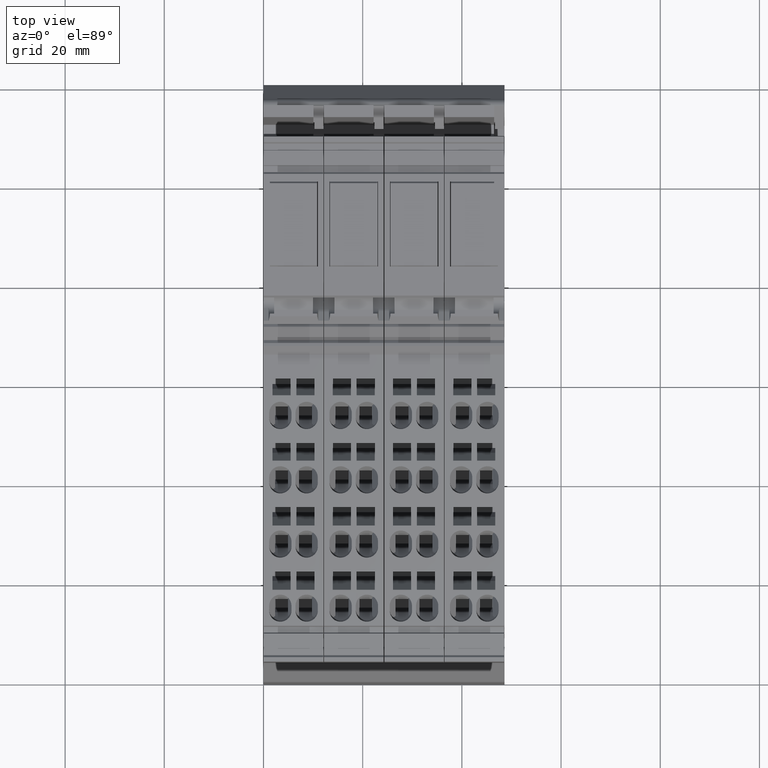
[diagram: clean part render]
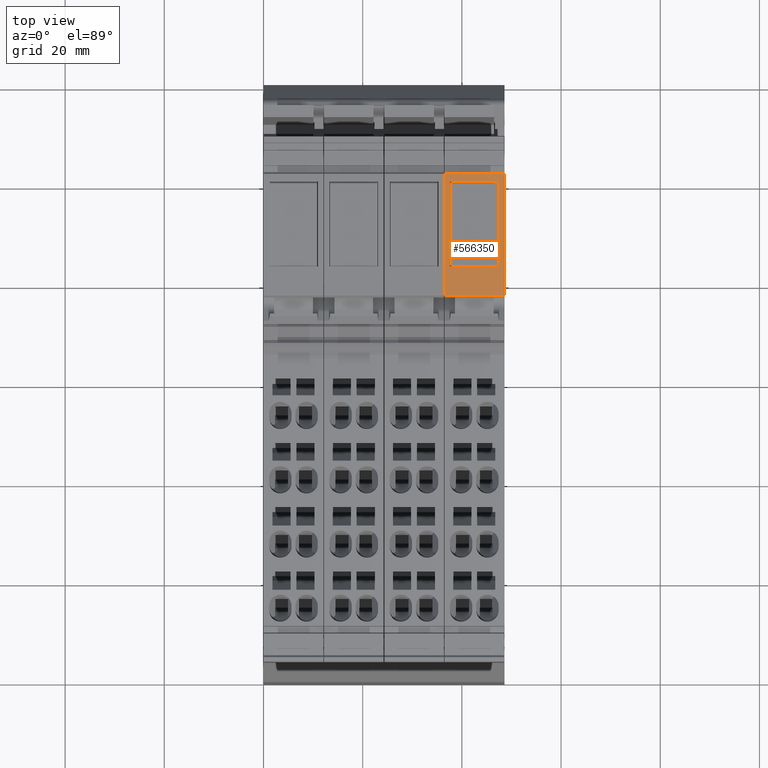
[diagram: same view with one face highlighted and labeled with its STEP entity id]
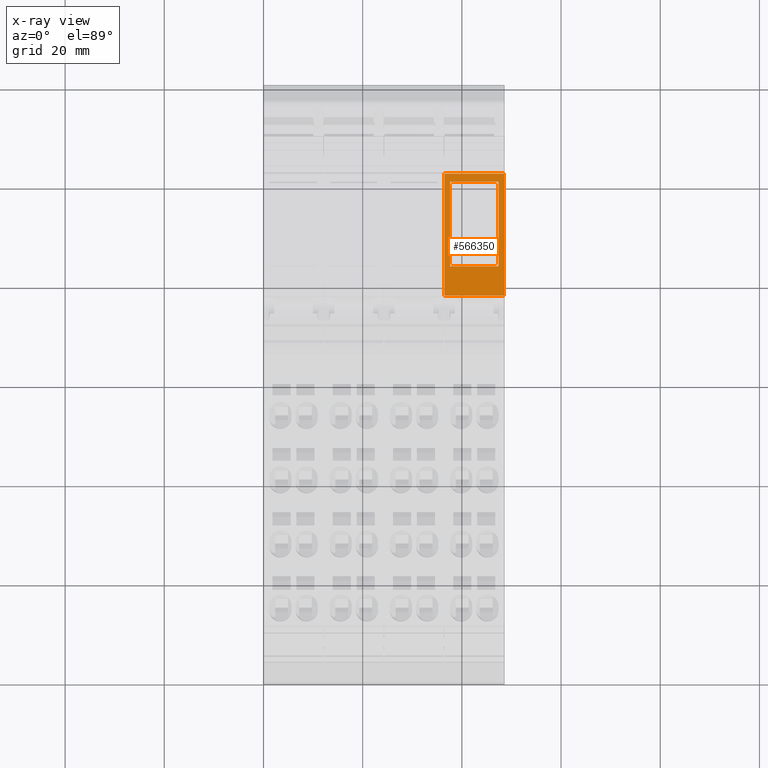
[diagram: x-ray of the same camera — body ghosted, the highlighted face saturated]
A machine part, top view. The second image highlights one B-rep face of the part: STEP entity #566350.
The next image is the same camera in x-ray: the body ghosted, the highlighted face saturated — about 0% of this face is hidden behind the body in this view.
In plain terms, the highlighted planar face has unit normal (-0, -0, 1).
Its self-contained STEP definition (entity closure, byte-faithful):
#405320=CARTESIAN_POINT('',(86.6847904689085,84.4866197234246,-35.425));
#405330=VERTEX_POINT('',#405320);
#405360=CARTESIAN_POINT('',(7.105427357601E-15,84.4866197234246,-35.425)
);
#405370=DIRECTION('',(-1.,0.,0.));
#405380=VECTOR('',#405370,1.);
#405390=LINE('',#405360,#405380);
#405400=CARTESIAN_POINT('',(111.280097074187,84.4866197234246,-35.425));
#405410=VERTEX_POINT('',#405400);
#405420=EDGE_CURVE('',#405410,#405330,#405390,.T.);
#414640=CARTESIAN_POINT('',(111.280097074187,84.4866197234246,-47.425));
#414650=VERTEX_POINT('',#414640);
#414680=CARTESIAN_POINT('',(7.105427357601E-15,84.4866197234246,-47.425)
);
#414690=DIRECTION('',(-1.,0.,0.));
#414700=VECTOR('',#414690,1.);
#414710=LINE('',#414680,#414700);
#414720=CARTESIAN_POINT('',(86.6847904689085,84.4866197234246,-47.425));
#414730=VERTEX_POINT('',#414720);
#414740=EDGE_CURVE('',#414650,#414730,#414710,.T.);
#503520=CARTESIAN_POINT('',(111.280097074187,84.4866197234246,
-8.88178419700125E-16));
#503530=DIRECTION('',(-8.85927774418128E-33,0.,1.));
#503540=VECTOR('',#503530,1.);
#503550=LINE('',#503520,#503540);
#503560=EDGE_CURVE('',#414650,#405410,#503550,.T.);
#564090=CARTESIAN_POINT('',(92.5604636963374,84.4866197234246,-46.325));
#564100=VERTEX_POINT('',#564090);
#564340=CARTESIAN_POINT('',(92.5604636963374,84.4866197234246,-36.525));
#564350=VERTEX_POINT('',#564340);
#564380=CARTESIAN_POINT('',(92.5604636963374,84.4866197234246,
-8.88178419700125E-16));
#564390=DIRECTION('',(8.85927774418128E-33,0.,-1.));
#564400=VECTOR('',#564390,1.);
#564410=LINE('',#564380,#564400);
#564420=EDGE_CURVE('',#564350,#564100,#564410,.T.);
#565180=CARTESIAN_POINT('',(109.676285095723,84.4866197234246,-46.325));
#565190=VERTEX_POINT('',#565180);
#565220=CARTESIAN_POINT('',(109.676285095723,84.4866197234246,
-8.88178419700125E-16));
#565230=DIRECTION('',(-8.85927774418128E-33,0.,1.));
#565240=VECTOR('',#565230,1.);
#565250=LINE('',#565220,#565240);
#565260=CARTESIAN_POINT('',(109.676285095723,84.4866197234246,-36.525));
#565270=VERTEX_POINT('',#565260);
#565280=EDGE_CURVE('',#565190,#565270,#565250,.T.);
#565510=CARTESIAN_POINT('',(7.105427357601E-15,84.4866197234246,-46.325)
);
#565520=DIRECTION('',(-1.,0.,8.85927774418128E-33));
#565530=VECTOR('',#565520,1.);
#565540=LINE('',#565510,#565530);
#565550=EDGE_CURVE('',#565190,#564100,#565540,.T.);
#565780=CARTESIAN_POINT('',(7.105427357601E-15,84.4866197234246,-36.525)
);
#565790=DIRECTION('',(1.,0.,-8.85927774418128E-33));
#565800=VECTOR('',#565790,1.);
#565810=LINE('',#565780,#565800);
#565820=EDGE_CURVE('',#564350,#565270,#565810,.T.);
#566130=CARTESIAN_POINT('',(110.101652641052,84.4866197234246,-36.275));
#566140=DIRECTION('',(0.,1.,0.));
#566150=DIRECTION('',(-1.,0.,8.85927774418128E-33));
#566160=AXIS2_PLACEMENT_3D('',#566130,#566140,#566150);
#566170=PLANE('',#566160);
#566180=ORIENTED_EDGE('',*,*,#565820,.F.);
#566190=ORIENTED_EDGE('',*,*,#565280,.T.);
#566200=ORIENTED_EDGE('',*,*,#565550,.F.);
#566210=ORIENTED_EDGE('',*,*,#564420,.T.);
#566220=EDGE_LOOP('',(#566210,#566200,#566190,#566180));
#566230=FACE_BOUND('',#566220,.T.);
#566240=ORIENTED_EDGE('',*,*,#405420,.F.);
#566250=CARTESIAN_POINT('',(86.6847904689085,84.4866197234245,
-8.88178419700125E-16));
#566260=DIRECTION('',(8.85927774418128E-33,0.,-1.));
#566270=VECTOR('',#566260,1.);
#566280=LINE('',#566250,#566270);
#566290=EDGE_CURVE('',#405330,#414730,#566280,.T.);
#566300=ORIENTED_EDGE('',*,*,#566290,.F.);
#566310=ORIENTED_EDGE('',*,*,#414740,.T.);
#566320=ORIENTED_EDGE('',*,*,#503560,.F.);
#566330=EDGE_LOOP('',(#566320,#566310,#566300,#566240));
#566340=FACE_OUTER_BOUND('',#566330,.T.);
#566350=ADVANCED_FACE('',(#566230,#566340),#566170,.T.);